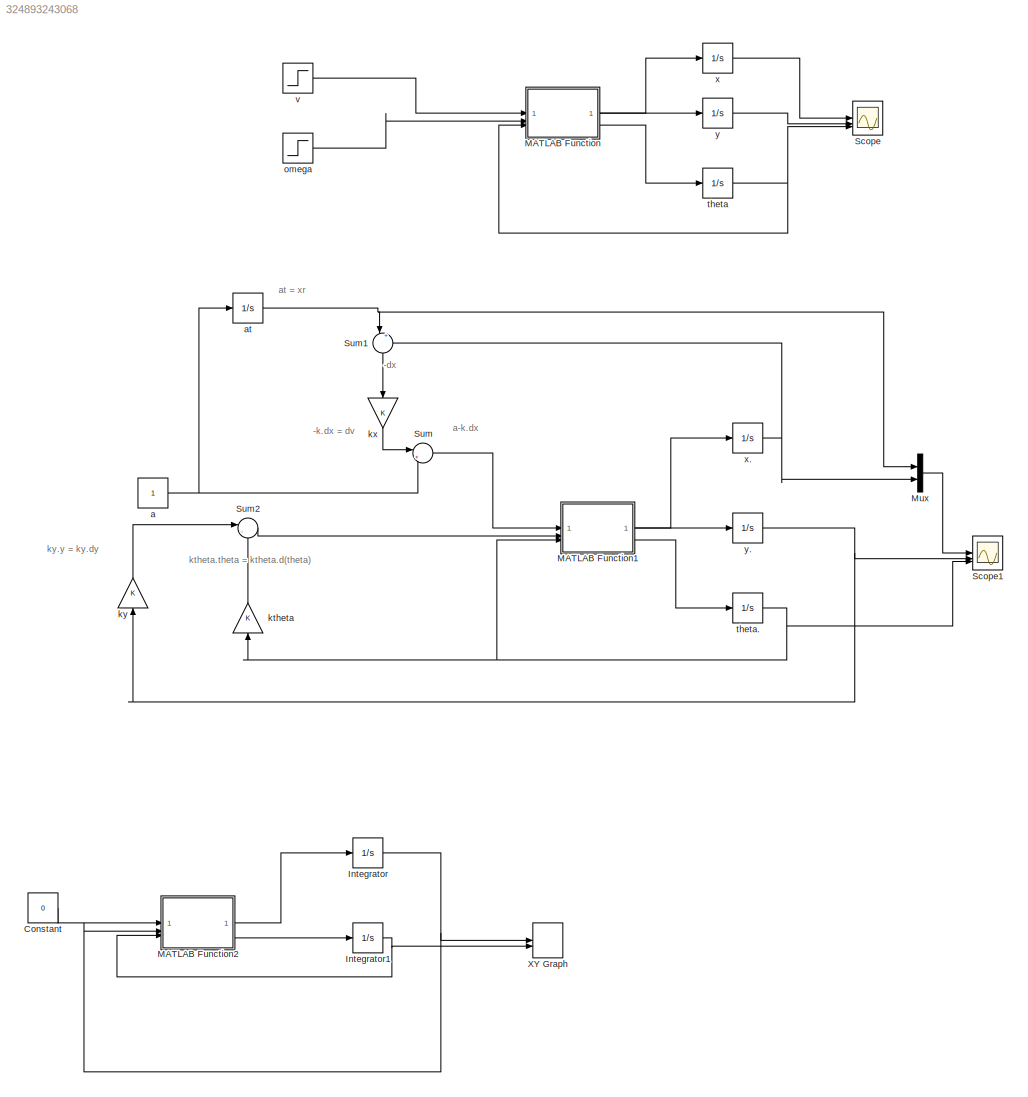
MODEL slx_324893243068
KIND model
CONFIG AbsTol = auto
CONFIG EnableMultiTasking = off
CONFIG FixedStep = auto
CONFIG MaxStep = 0.01
CONFIG MinStep = auto
CONFIG RelTol = 1e-3
CONFIG SampleTimeConstraint = Unconstrained
CONFIG SolverName = VariableStepAuto
CONFIG StartTime = 0.0
CONFIG StopTime = 20
BLOCK [Constant] Constant
  Value = 0
BLOCK [Integrator] Integrator
  InitialCondition = 1
BLOCK [Integrator] Integrator1
  InitialCondition = 0.4
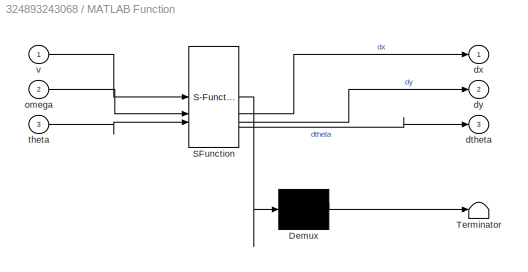
BLOCK [SubSystem] MATLAB Function
  ErrorFcn = Stateflow.Translate.translate
  LibrarySourceBlock = simulink/User-Defined\nFunctions/MATLAB Function
  PermitHierarchicalResolution = ExplicitOnly
  SFBlockType = MATLAB Function
  TreatAsAtomicUnit = on
BLOCK [Demux] MATLAB Function/ Demux 
  Outputs = 1
BLOCK [S-Function] MATLAB Function/ SFunction 
  EnableBusSupport = on
  FunctionName = sf_sfun
  PortCounts = [3 4]
  SFcnIsStateOwnerBlock = off
  SFunctionDeploymentMode = off
  Tag = Stateflow S-Function 2
BLOCK [Terminator] MATLAB Function/ Terminator 
BLOCK [Outport] MATLAB Function/dtheta
  Port = 3
BLOCK [Outport] MATLAB Function/dx
BLOCK [Outport] MATLAB Function/dy
  Port = 2
BLOCK [Inport] MATLAB Function/omega
  Port = 2
BLOCK [Inport] MATLAB Function/theta
  Port = 3
BLOCK [Inport] MATLAB Function/v
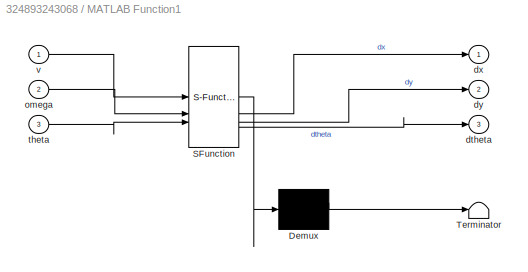
BLOCK [SubSystem] MATLAB Function1
  ErrorFcn = Stateflow.Translate.translate
  LibrarySourceBlock = simulink/User-Defined\nFunctions/MATLAB Function
  PermitHierarchicalResolution = ExplicitOnly
  SFBlockType = MATLAB Function
  TreatAsAtomicUnit = on
BLOCK [Demux] MATLAB Function1/ Demux 
  Outputs = 1
BLOCK [S-Function] MATLAB Function1/ SFunction 
  EnableBusSupport = on
  FunctionName = sf_sfun
  PortCounts = [3 4]
  SFcnIsStateOwnerBlock = off
  SFunctionDeploymentMode = off
  Tag = Stateflow S-Function 1
BLOCK [Terminator] MATLAB Function1/ Terminator 
BLOCK [Outport] MATLAB Function1/dtheta
  Port = 3
BLOCK [Outport] MATLAB Function1/dx
BLOCK [Outport] MATLAB Function1/dy
  Port = 2
BLOCK [Inport] MATLAB Function1/omega
  Port = 2
BLOCK [Inport] MATLAB Function1/theta
  Port = 3
BLOCK [Inport] MATLAB Function1/v
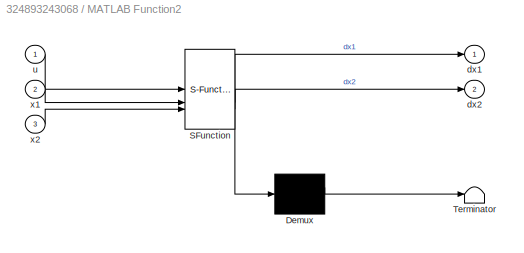
BLOCK [SubSystem] MATLAB Function2
  ErrorFcn = Stateflow.Translate.translate
  LibrarySourceBlock = simulink/User-Defined\nFunctions/MATLAB Function
  PermitHierarchicalResolution = ExplicitOnly
  SFBlockType = MATLAB Function
  TreatAsAtomicUnit = on
BLOCK [Demux] MATLAB Function2/ Demux 
  Outputs = 1
BLOCK [S-Function] MATLAB Function2/ SFunction 
  EnableBusSupport = on
  FunctionName = sf_sfun
  PortCounts = [3 3]
  SFcnIsStateOwnerBlock = off
  SFunctionDeploymentMode = off
  Tag = Stateflow S-Function 3
BLOCK [Terminator] MATLAB Function2/ Terminator 
BLOCK [Outport] MATLAB Function2/dx1
BLOCK [Outport] MATLAB Function2/dx2
  Port = 2
BLOCK [Inport] MATLAB Function2/u
BLOCK [Inport] MATLAB Function2/x1
  Port = 2
BLOCK [Inport] MATLAB Function2/x2
  Port = 3
BLOCK [Mux] Mux
  DisplayOption = bar
  Inputs = 2
BLOCK [Scope] Scope
  Floating = off
  NumInputPorts = 3
  ScopeSpecificationString = Simulink.scopes.TimeScopeBlockCfg('CurrentConfiguration', extmgr.ConfigurationSet(extmgr.Configuration('Core','General UI',true),extmgr.Configuration('Core','Source UI',true),extmgr.Configuration('Sources','WiredSimulink',true),extmgr.Configuration('Visuals','Time Domain',true,'SerializedDisplays',{struct('MinYLimReal','-1.25','MaxYLimReal','1.25','YLabelReal','','MinYLimMag','0.00000','MaxYLimMag...<+2600ch>
BLOCK [Scope] Scope1
  Floating = off
  NumInputPorts = 3
  ScopeSpecificationString = Simulink.scopes.TimeScopeBlockCfg('CurrentConfiguration', extmgr.ConfigurationSet(extmgr.Configuration('Core','General UI',true),extmgr.Configuration('Core','Source UI',true),extmgr.Configuration('Sources','WiredSimulink',true,'DataLoggingVariableName','ScopeData1'),extmgr.Configuration('Visuals','Time Domain',true,'SerializedDisplays',{struct('MinYLimReal','-2.5','MaxYLimReal','22.5','YLabelReal'...<+2649ch>
BLOCK [Sum] Sum
  Inputs = |++
BLOCK [Sum] Sum1
  Inputs = |+-
  NameLocation = left
BLOCK [Sum] Sum2
  Inputs = |--
BLOCK [Record] XY Graph
  CompatibilityTag = XY
  FileSettingsInternal = {"entries":[{"content":{"excelSettings":{"content":{},"type":"Streamout.ExcelSettings"}},"type":"Streamout.FileSettingStorage","uuid":"fc4d958a-e6ba-42b8-865c-33b7ea9480a9"}],"packageUris":["http://schema.mathworks.com/mf0/streamout_blocks/R2020a"],"version":"1.0"}
  Layout = [1 1]
  SignalsInternal = {"entries":[{"content":{"signals":[{"content":{"blockPath":["robot/XY Graph"],"channel":[],"dimensions":[1],"domain":"robot/XY Graph","lineColor":"#a2142f","plots":[1],"port":1,"sid":[""],"signalID":35,"signalName":"Integrator"},"type":"RecordBlkView.Signal","uuid":"0225e2f5-7c19-43f5-a54d-7a91d70c9435"},{"content":{"blockPath":["robot/XY Graph"],"channel":[],"dimensions":[1],"domain":"robot/XY Gr...<+354ch>
  VisualizationBindings = {"xyplotplugin":{"info":[{"series":[{"bindingParametersList":[{"parameter":"X-Axis","signalID":35,"signalName":"Integrator"},{"parameter":"Y-Axis","signalID":39,"signalName":"Integrator1"}],"seriesID":26402}],"subplotID":1}]}}
  st = -1
BLOCK [Constant] a
BLOCK [Integrator] at
BLOCK [Gain] ktheta
  NameLocation = right
BLOCK [Gain] kx
  NameLocation = left
BLOCK [Gain] ky
  NameLocation = right
BLOCK [Step] omega
  SampleTime = 3
BLOCK [Integrator] theta
BLOCK [Integrator] theta.
  InitialCondition = 0.1
BLOCK [Step] v
  SampleTime = 3
BLOCK [Integrator] x
BLOCK [Integrator] x.
  InitialCondition = 1
BLOCK [Integrator] y
BLOCK [Integrator] y.
  InitialCondition = 0.1
ANNOTATION (root): -dx
ANNOTATION (root): -k.dx = dv
ANNOTATION (root): a-k.dx
ANNOTATION (root): at = xr
ANNOTATION (root): ktheta.theta = ktheta.d(theta)
ANNOTATION (root): ky.y = ky.dy
LINE Constant:1 -> MATLAB Function2:1
NET Integrator1:1 -> MATLAB Function2:3, XY Graph:2
NET Integrator:1 -> MATLAB Function2:2, XY Graph:1
LINE MATLAB Function1:1 -> x.:1
LINE MATLAB Function1:2 -> y.:1
LINE MATLAB Function1:3 -> theta.:1
LINE MATLAB Function2:1 -> Integrator:1
LINE MATLAB Function2:2 -> Integrator1:1
LINE MATLAB Function:1 -> x:1
LINE MATLAB Function:2 -> y:1
LINE MATLAB Function:3 -> theta:1
LINE Mux:1 -> Scope1:1
LINE Sum1:1 -> kx:1
LINE Sum2:1 -> MATLAB Function1:2
LINE Sum:1 -> MATLAB Function1:1
NET a:1 -> Sum:2, at:1
NET at:1 -> Mux:1, Sum1:1
LINE ktheta:1 -> Sum2:2
LINE kx:1 -> Sum:1
LINE ky:1 -> Sum2:1
LINE omega:1 -> MATLAB Function:2
NET theta.:1 -> MATLAB Function1:3, Scope1:3, ktheta:1
NET theta:1 -> MATLAB Function:3, Scope:3
LINE v:1 -> MATLAB Function:1
NET x.:1 -> Mux:2, Sum1:2
LINE x:1 -> Scope:1
NET y.:1 -> Scope1:2, ky:1
LINE y:1 -> Scope:2
note: NET lines group one-source signal fan-out (src -> all destinations, sorted); 1:1 wires keep LINE
CHART MATLAB Function1 states=1 transitions=1
  STATE_LABEL 'eML_blk_kernel()'
  STATE_LABEL 'SCRIPT:\nfunction [dx, dy, dtheta] = fcn(v, omega, theta)\n\ndx = v*cos(theta);\ndy = v*sin(theta);\ndtheta = omega;\n\n\n'
CHART MATLAB Function states=1 transitions=1
  STATE_LABEL 'eML_blk_kernel()'
  STATE_LABEL 'SCRIPT:\nfunction [dx, dy, dtheta] = fcn(v, omega, theta)\n\ndx = v*cos(theta);\ndy = v*sin(theta);\ndtheta = omega;\n\n\n'
CHART MATLAB Function2 states=1 transitions=1
  STATE_LABEL 'eML_blk_kernel()'
  STATE_LABEL 'SCRIPT:\nfunction [dx1, dx2] = fcn(u, x1, x2)\n\nrho = 1;\ndx1 = x2;\ndx2 = -rho*(x1^2-1)*x2 - x1 + u;\n\n\n'
CHART  states=0 transitions=0
CHART  states=0 transitions=0
CHART  states=0 transitions=0
